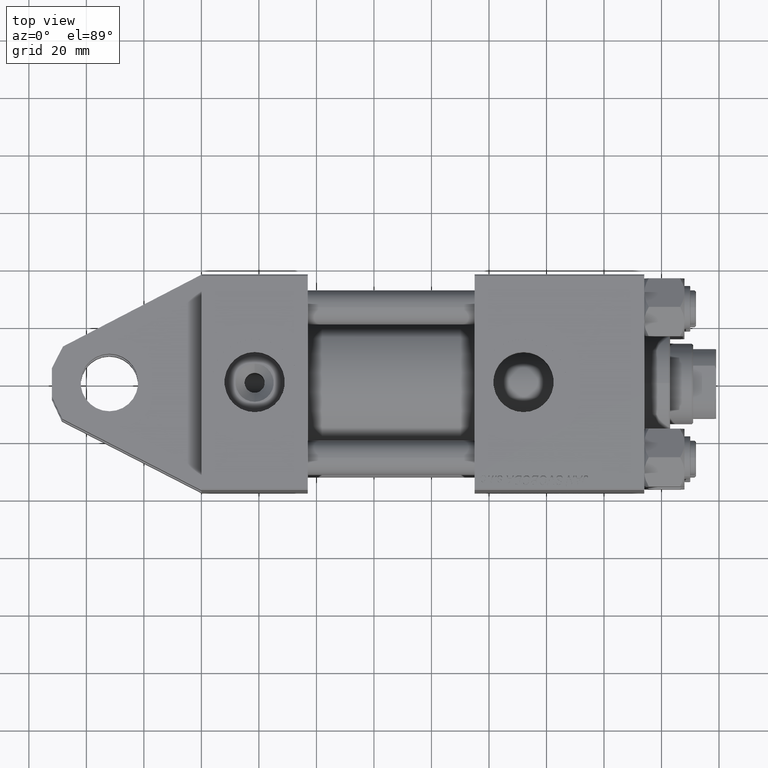
[diagram: clean part render]
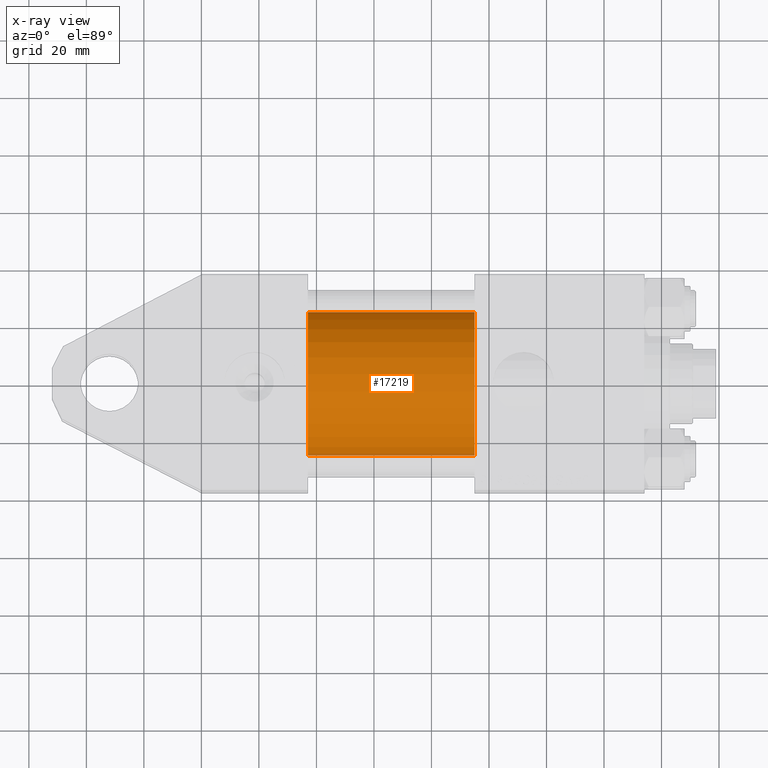
[diagram: x-ray — body ghosted, one internal face saturated and labeled with its STEP entity id]
A machine part, top view, then the same camera in x-ray: the body is ghosted and one INTERNAL B-rep face — a face not visible from any outside direction — is saturated and labeled: STEP entity #17219.
In plain terms, the highlighted cylindrical surface (partial cylindrical patch) has radius 25 mm, axis along (-1, -0, 0).
Its self-contained STEP definition (entity closure, byte-faithful):
#1004 = CARTESIAN_POINT ( 'NONE',  ( 95.00000000000000000, -3.469446951953614189E-15, 25.00000000000000000 ) ) ;
#1425 = VECTOR ( 'NONE', #27999, 1000.000000000000000 ) ;
#2443 = VERTEX_POINT ( 'NONE', #3952 ) ;
#3818 = VERTEX_POINT ( 'NONE', #46294 ) ;
#3952 = CARTESIAN_POINT ( 'NONE',  ( 37.00000000000000000, -4.078299540852317872E-16, -25.00000000000000000 ) ) ;
#4773 = CARTESIAN_POINT ( 'NONE',  ( 95.00000000000000000, -3.469446951953614189E-15, 0.000000000000000000 ) ) ;
#5697 = ORIENTED_EDGE ( 'NONE', *, *, #38375, .T. ) ;
#8787 = FACE_OUTER_BOUND ( 'NONE', #37155, .T. ) ;
#9682 = DIRECTION ( 'NONE',  ( 1.000000000000000000, 0.000000000000000000, 0.000000000000000000 ) ) ;
#12375 = CIRCLE ( 'NONE', #26784, 25.00000000000000000 ) ;
#13416 = CARTESIAN_POINT ( 'NONE',  ( 95.00000000000000000, -4.078299540852317872E-16, -25.00000000000000000 ) ) ;
#14527 = ORIENTED_EDGE ( 'NONE', *, *, #41432, .F. ) ;
#17219 = ADVANCED_FACE ( 'NONE', ( #8787 ), #43191, .F. ) ;
#20210 = DIRECTION ( 'NONE',  ( 1.000000000000000000, 0.000000000000000000, 0.000000000000000000 ) ) ;
#23852 = DIRECTION ( 'NONE',  ( -1.000000000000000000, -0.000000000000000000, -0.000000000000000000 ) ) ;
#24637 = AXIS2_PLACEMENT_3D ( 'NONE', #28952, #20210, #35514 ) ;
#25185 = CARTESIAN_POINT ( 'NONE',  ( 95.00000000000000000, -3.469446951953614189E-15, 25.00000000000000000 ) ) ;
#25238 = DIRECTION ( 'NONE',  ( 0.000000000000000000, 0.000000000000000000, -1.000000000000000000 ) ) ;
#26784 = AXIS2_PLACEMENT_3D ( 'NONE', #44084, #9682, #25238 ) ;
#27999 = DIRECTION ( 'NONE',  ( -1.000000000000000000, -0.000000000000000000, -0.000000000000000000 ) ) ;
#28644 = CIRCLE ( 'NONE', #24637, 25.00000000000000000 ) ;
#28952 = CARTESIAN_POINT ( 'NONE',  ( 95.00000000000000000, -3.469446951953614189E-15, 0.000000000000000000 ) ) ;
#29189 = EDGE_CURVE ( 'NONE', #3818, #2443, #12375, .T. ) ;
#29587 = ORIENTED_EDGE ( 'NONE', *, *, #41259, .T. ) ;
#29932 = LINE ( 'NONE', #25185, #39998 ) ;
#31825 = CARTESIAN_POINT ( 'NONE',  ( 95.00000000000000000, -4.078299540852317872E-16, -25.00000000000000000 ) ) ;
#35514 = DIRECTION ( 'NONE',  ( 0.000000000000000000, 0.000000000000000000, -1.000000000000000000 ) ) ;
#35779 = LINE ( 'NONE', #13416, #1425 ) ;
#36368 = VERTEX_POINT ( 'NONE', #31825 ) ;
#37155 = EDGE_LOOP ( 'NONE', ( #29587, #5697, #44610, #14527 ) ) ;
#38375 = EDGE_CURVE ( 'NONE', #36368, #2443, #35779, .T. ) ;
#39998 = VECTOR ( 'NONE', #41505, 1000.000000000000000 ) ;
#41259 = EDGE_CURVE ( 'NONE', #43081, #36368, #28644, .T. ) ;
#41432 = EDGE_CURVE ( 'NONE', #43081, #3818, #29932, .T. ) ;
#41505 = DIRECTION ( 'NONE',  ( -1.000000000000000000, -0.000000000000000000, -0.000000000000000000 ) ) ;
#42440 = DIRECTION ( 'NONE',  ( 0.000000000000000000, 0.000000000000000000, 1.000000000000000000 ) ) ;
#43081 = VERTEX_POINT ( 'NONE', #1004 ) ;
#43191 = CYLINDRICAL_SURFACE ( 'NONE', #49585, 25.00000000000000000 ) ;
#44084 = CARTESIAN_POINT ( 'NONE',  ( 37.00000000000000000, -3.469446951953614189E-15, 0.000000000000000000 ) ) ;
#44610 = ORIENTED_EDGE ( 'NONE', *, *, #29189, .F. ) ;
#46294 = CARTESIAN_POINT ( 'NONE',  ( 37.00000000000000000, -3.469446951953614189E-15, 25.00000000000000000 ) ) ;
#49585 = AXIS2_PLACEMENT_3D ( 'NONE', #4773, #23852, #42440 ) ;